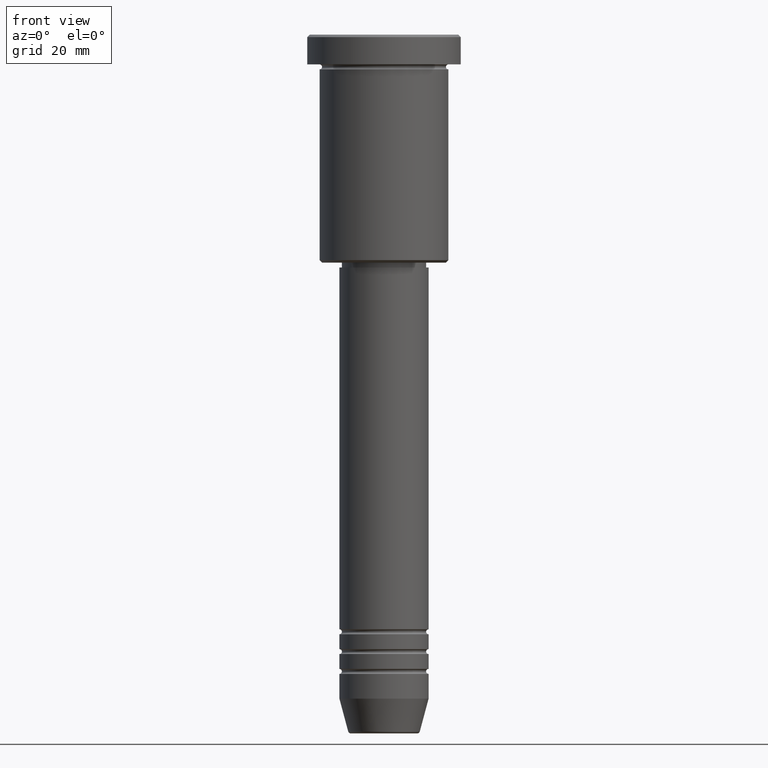
[diagram: clean part render]
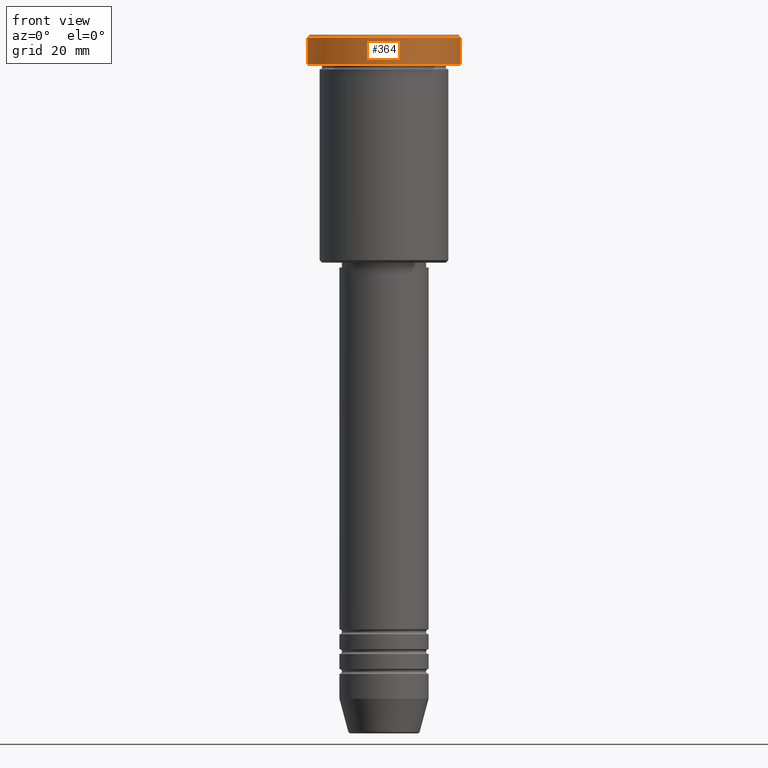
[diagram: same view with one face highlighted and labeled with its STEP entity id]
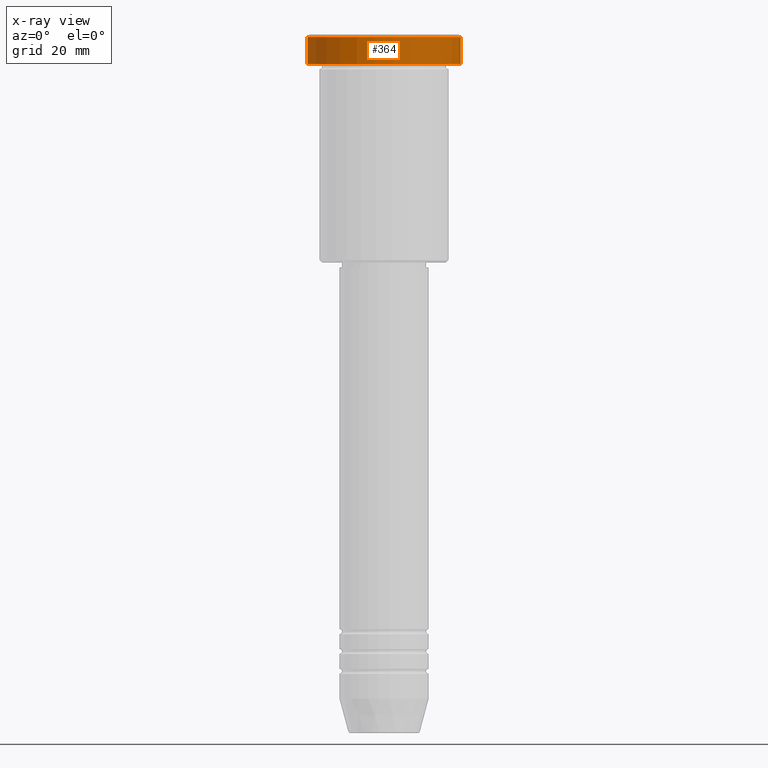
[diagram: x-ray of the same camera — body ghosted, the highlighted face saturated]
A machine part, front view. The second image highlights one B-rep face of the part: STEP entity #364.
The next image is the same camera in x-ray: the body ghosted, the highlighted face saturated — about 0% of this face is hidden behind the body in this view.
In plain terms, the highlighted cylindrical surface (partial cylindrical patch) has radius 15.5 mm, axis along (-0, -0, 1).
Its self-contained STEP definition (entity closure, byte-faithful):
#112 = LINE ( 'NONE', #1123, #1109 ) ;
#138 = DIRECTION ( 'NONE',  ( -0.000000000000000000, -0.000000000000000000, 1.000000000000000000 ) ) ;
#152 = DIRECTION ( 'NONE',  ( -0.000000000000000000, -0.000000000000000000, 1.000000000000000000 ) ) ;
#155 = CARTESIAN_POINT ( 'NONE',  ( -15.50000000000000000, 1.898202538678397557E-15, -0.5000000000000125455 ) ) ;
#174 = CARTESIAN_POINT ( 'NONE',  ( 0.000000000000000000, 0.000000000000000000, 0.000000000000000000 ) ) ;
#213 = ORIENTED_EDGE ( 'NONE', *, *, #416, .T. ) ;
#241 = CYLINDRICAL_SURFACE ( 'NONE', #1146, 15.50000000000000000 ) ;
#364 = ADVANCED_FACE ( 'NONE', ( #1176 ), #241, .T. ) ;
#376 = CARTESIAN_POINT ( 'NONE',  ( -15.50000000000000000, 1.898202538678397557E-15, 0.000000000000000000 ) ) ;
#393 = VERTEX_POINT ( 'NONE', #1172 ) ;
#394 = EDGE_CURVE ( 'NONE', #393, #1144, #728, .T. ) ;
#412 = DIRECTION ( 'NONE',  ( 1.000000000000000000, 0.000000000000000000, 0.000000000000000000 ) ) ;
#416 = EDGE_CURVE ( 'NONE', #661, #1003, #112, .T. ) ;
#462 = DIRECTION ( 'NONE',  ( -0.000000000000000000, -0.000000000000000000, 1.000000000000000000 ) ) ;
#508 = ORIENTED_EDGE ( 'NONE', *, *, #1121, .T. ) ;
#516 = DIRECTION ( 'NONE',  ( 1.000000000000000000, 0.000000000000000000, 0.000000000000000000 ) ) ;
#567 = CIRCLE ( 'NONE', #760, 15.50000000000000000 ) ;
#590 = CARTESIAN_POINT ( 'NONE',  ( 15.50000000000000000, 0.000000000000000000, -5.999999999999995559 ) ) ;
#610 = AXIS2_PLACEMENT_3D ( 'NONE', #867, #138, #412 ) ;
#661 = VERTEX_POINT ( 'NONE', #590 ) ;
#728 = LINE ( 'NONE', #376, #908 ) ;
#752 = EDGE_LOOP ( 'NONE', ( #825, #508, #213, #1112 ) ) ;
#760 = AXIS2_PLACEMENT_3D ( 'NONE', #857, #1143, #516 ) ;
#825 = ORIENTED_EDGE ( 'NONE', *, *, #394, .F. ) ;
#842 = CIRCLE ( 'NONE', #610, 15.50000000000000000 ) ;
#857 = CARTESIAN_POINT ( 'NONE',  ( 0.000000000000000000, 0.000000000000000000, -0.5000000000000125455 ) ) ;
#867 = CARTESIAN_POINT ( 'NONE',  ( 0.000000000000000000, 0.000000000000000000, -5.999999999999995559 ) ) ;
#908 = VECTOR ( 'NONE', #1095, 1000.000000000000000 ) ;
#919 = DIRECTION ( 'NONE',  ( 1.000000000000000000, 0.000000000000000000, 0.000000000000000000 ) ) ;
#1003 = VERTEX_POINT ( 'NONE', #1039 ) ;
#1023 = EDGE_CURVE ( 'NONE', #1003, #1144, #567, .T. ) ;
#1039 = CARTESIAN_POINT ( 'NONE',  ( 15.50000000000000000, 0.000000000000000000, -0.5000000000000125455 ) ) ;
#1095 = DIRECTION ( 'NONE',  ( -0.000000000000000000, -0.000000000000000000, 1.000000000000000000 ) ) ;
#1109 = VECTOR ( 'NONE', #462, 1000.000000000000000 ) ;
#1112 = ORIENTED_EDGE ( 'NONE', *, *, #1023, .T. ) ;
#1121 = EDGE_CURVE ( 'NONE', #393, #661, #842, .T. ) ;
#1123 = CARTESIAN_POINT ( 'NONE',  ( 15.50000000000000000, 0.000000000000000000, 0.000000000000000000 ) ) ;
#1143 = DIRECTION ( 'NONE',  ( 0.000000000000000000, 0.000000000000000000, -1.000000000000000000 ) ) ;
#1144 = VERTEX_POINT ( 'NONE', #155 ) ;
#1146 = AXIS2_PLACEMENT_3D ( 'NONE', #174, #152, #919 ) ;
#1172 = CARTESIAN_POINT ( 'NONE',  ( -15.50000000000000000, 1.898202538678397557E-15, -5.999999999999995559 ) ) ;
#1176 = FACE_OUTER_BOUND ( 'NONE', #752, .T. ) ;